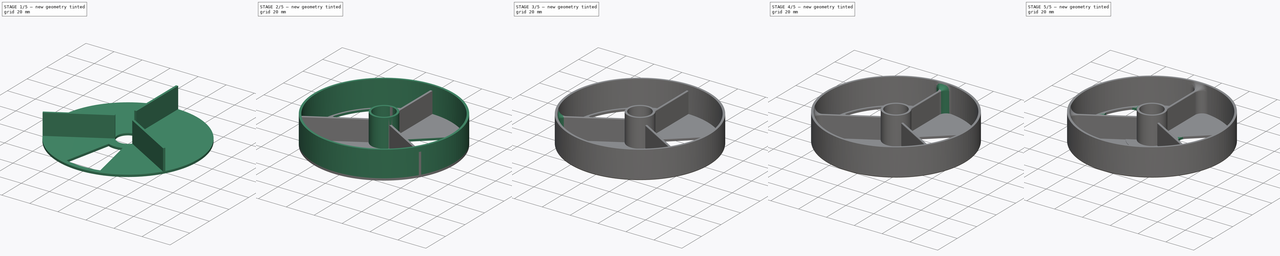
[diagram: build sequence overview — one tinted view per stage of 5, left to right]
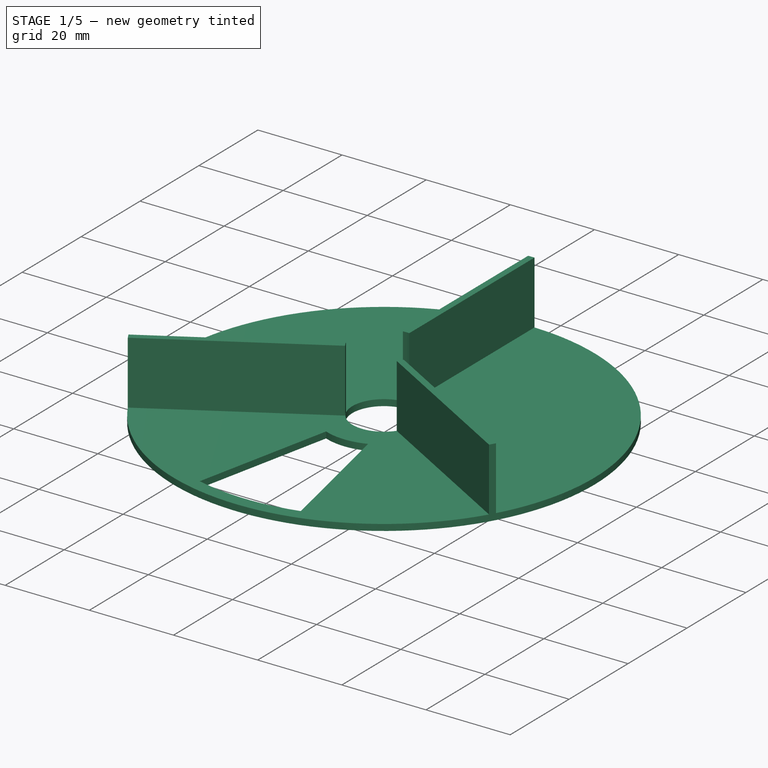
[diagram: stage 1 of 5 — iso view after this stage's code; geometry added in this stage tinted green]
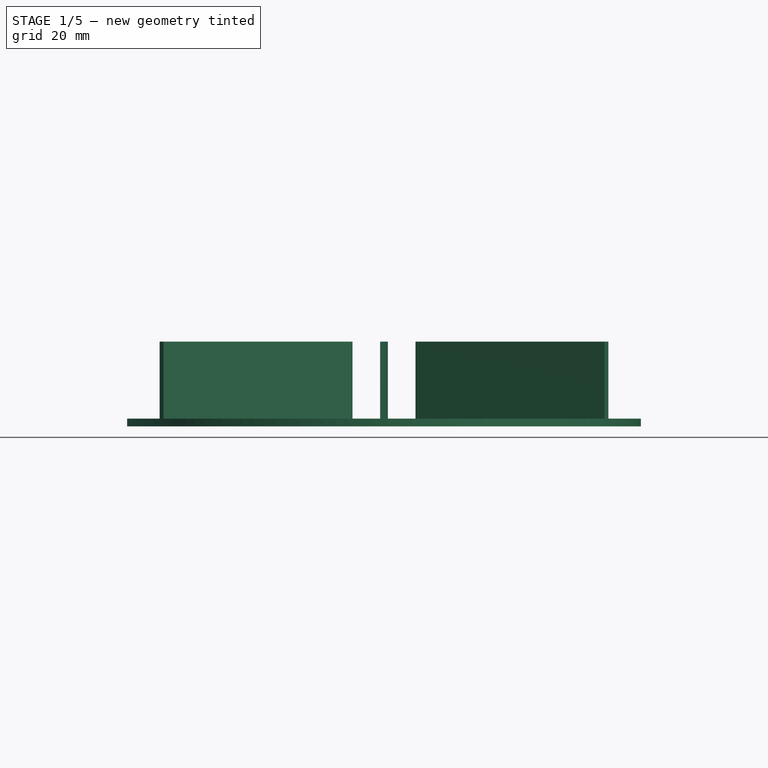
[diagram: stage 1 of 5 — front view after this stage's code; geometry added in this stage tinted green]
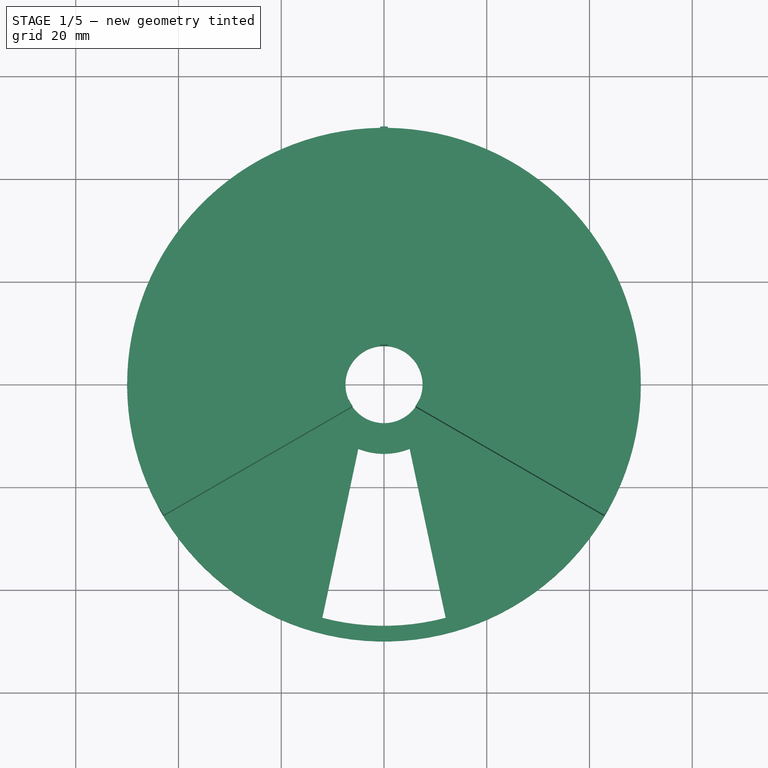
[diagram: stage 1 of 5 — top view after this stage's code; geometry added in this stage tinted green]
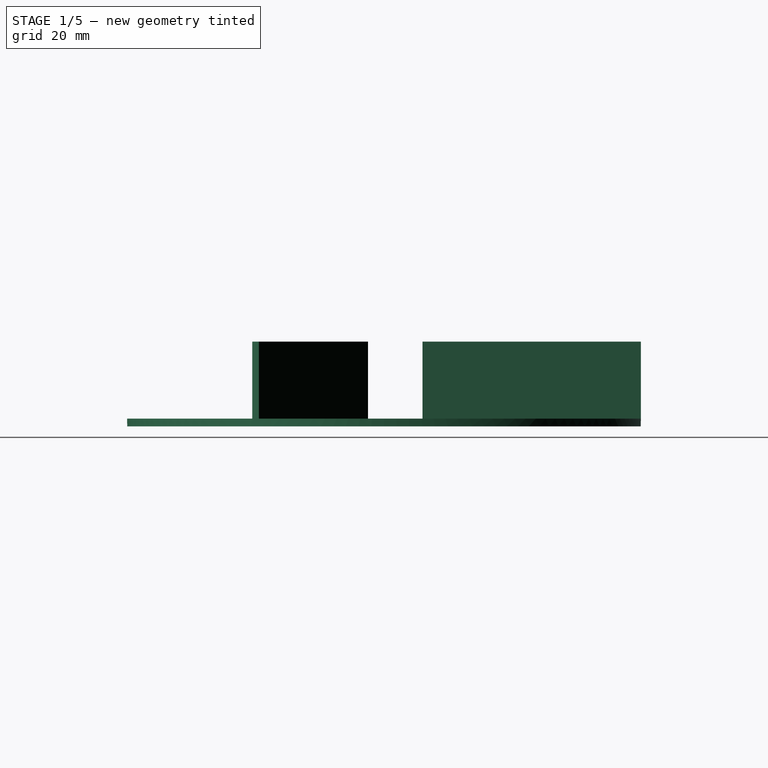
[diagram: stage 1 of 5 — right view after this stage's code; geometry added in this stage tinted green]
FCSTD DOCUMENT  (FreeCAD 0.19R24291 (Git))
Label: Ada_Tekerlek_YENI
License: All rights reserved
LicenseURL: http://en.wikipedia.org/wiki/All_rights_reserved
objects: Sketcher::SketchObject×8, PartDesign::Fillet×7, PartDesign::Pad×6, PartDesign::PolarPattern×3, PartDesign::Pocket×2, PartDesign::Chamfer×2, Spreadsheet::Sheet×1, PartDesign::Body×1, App::Part×1
note: 46 computed .brp shape members not serialized (recipe doc carries the construction recipe); baked Part::Feature solids carry a one-line shape summary decoded from their .brp

FEATURE [Sketcher::SketchObject] Sketch
  FullyConstrained = true
  MapMode = 5
  Support = -> [XY_Plane001]
  expr: Constraints[2] = <<Parametreler>>.inner_diameter
  expr: Constraints[3] = <<Parametreler>>.outer_diameter
  sketch-geometry (2):
    g0: Circle CenterX=0 CenterY=0 CenterZ=0 NormalX=0 NormalY=0 NormalZ=1 AngleXU=0 Radius=7.5
    g1: Circle CenterX=0 CenterY=0 CenterZ=0 NormalX=0 NormalY=0 NormalZ=1 AngleXU=0 Radius=50
  constraints (4):
    c: Coincident(g0,g-1)
    c: Coincident(g1,g0)
    c: Radius(g0) = 7.5
    c: Radius(g1) = 50
FEATURE [Spreadsheet::Sheet] Spreadsheet  label="Parametreler"
  cells = A2=İç Çap; B2(inner_diameter)=7.5; A3=Dış Çap; B3(outer_diameter)=50; A4=Kalınlık; B4(thikness)=1.5; A5=Yükseklik; B5(height)=20
FEATURE [PartDesign::Pad] Pad
  Direction = (1,1,1)
  Length = 1.5
  Length2 = 100
  Profile = -> Sketch
  Type = 0
  expr: Length = <<Parametreler>>.thikness
FEATURE [Sketcher::SketchObject] Sketch001
  FullyConstrained = true
  MapMode = 5
  Placement = pos=(0,0,1.5) rot=(0,0,1;0rad)
  Support = -> [Pad]
  expr: Constraints[10] = <<Parametreler>>.inner_diameter
  expr: Constraints[11] = <<Parametreler>>.outer_diameter
  sketch-geometry (4):
    g0: ArcOfCircle CenterX=0 CenterY=0 CenterZ=0 NormalX=0 NormalY=0 NormalZ=1 AngleXU=0 Radius=50.0056 StartAngle=1.5558 EndAngle=1.5858
    g1: ArcOfCircle CenterX=0 CenterY=0 CenterZ=0 NormalX=0 NormalY=0 NormalZ=1 AngleXU=0 Radius=7.53741 StartAngle=1.47113 EndAngle=1.67046
    g2: LineSegment StartX=-0.75 StartY=50 StartZ=0 EndX=-0.75 EndY=7.5 EndZ=0
    g3: LineSegment StartX=0.75 StartY=7.5 StartZ=0 EndX=0.75 EndY=50 EndZ=0
  constraints (12):
    c: Coincident(g0,g-1)
    c: Coincident(g1,g0)
    c: Coincident(g2,g0)
    c: Coincident(g2,g1)
    c: Coincident(g3,g1)
    c: Coincident(g3,g0)
    c: DistanceX(g1,g0) = 0.75
    c: DistanceX(g0,g1) = 0.75
    c: DistanceX(g0,g0) = 0.75
    c: DistanceX(g0,g0) = 0.75
    c: DistanceY(g0,g1) = 7.5
    c: DistanceY(g0,g0) = 50
FEATURE [PartDesign::Pad] Pad001
  BaseFeature = -> Pad
  Direction = (1,1,1)
  Length = 15
  Length2 = 100
  Profile = -> Sketch001
  Type = 0
  expr: Length = <<Parametreler>>.height - 5
FEATURE [PartDesign::PolarPattern] PolarPattern
  Angle = 360
  Axis = -> Sketch001 [N_Axis]
  BaseFeature = -> Pad001
  Occurrences = 3
  Originals = -> [Pad001]
FEATURE [Sketcher::SketchObject] Sketch002
  FullyConstrained = false
  MapMode = 5
  Placement = pos=(0,0,1.5) rot=(0,0,1;0rad)
  Support = -> [PolarPattern]
  expr: Constraints[3] = <<Parametreler>>.inner_diameter + 5
  sketch-geometry (4):
    g0: ArcOfCircle CenterX=0 CenterY=0 CenterZ=0 NormalX=0 NormalY=0 NormalZ=1 AngleXU=0 Radius=13.4629 StartAngle=4.33188 EndAngle=5.0929
    g1: ArcOfCircle CenterX=0 CenterY=0 CenterZ=0 NormalX=0 NormalY=0 NormalZ=1 AngleXU=0 Radius=46.9583 StartAngle=4.45398 EndAngle=4.9708
    g2: LineSegment StartX=-12 StartY=-45.3991 StartZ=0 EndX=-5 EndY=-12.5 EndZ=0
    g3: LineSegment StartX=5 StartY=-12.5 StartZ=0 EndX=12 EndY=-45.3991 EndZ=0
  constraints (11):
    c: Coincident(g0,g-1)
    c: DistanceX(g0,g0) = 5
    c: DistanceX(g0,g0) = 5
    c: DistanceY(g0,g0) = 12.5
    c: Coincident(g1,g0)
    c: DistanceX(g1,g0) = 12
    c: DistanceX(g0,g1) = 12
    c: Coincident(g2,g1)
    c: Coincident(g2,g0)
    c: Coincident(g3,g0)
    c: Coincident(g3,g1)
FEATURE [PartDesign::Pocket] Pocket
  BaseFeature = -> PolarPattern
  Length = 2
  Length2 = 100
  Profile = -> Sketch002
  Type = 0
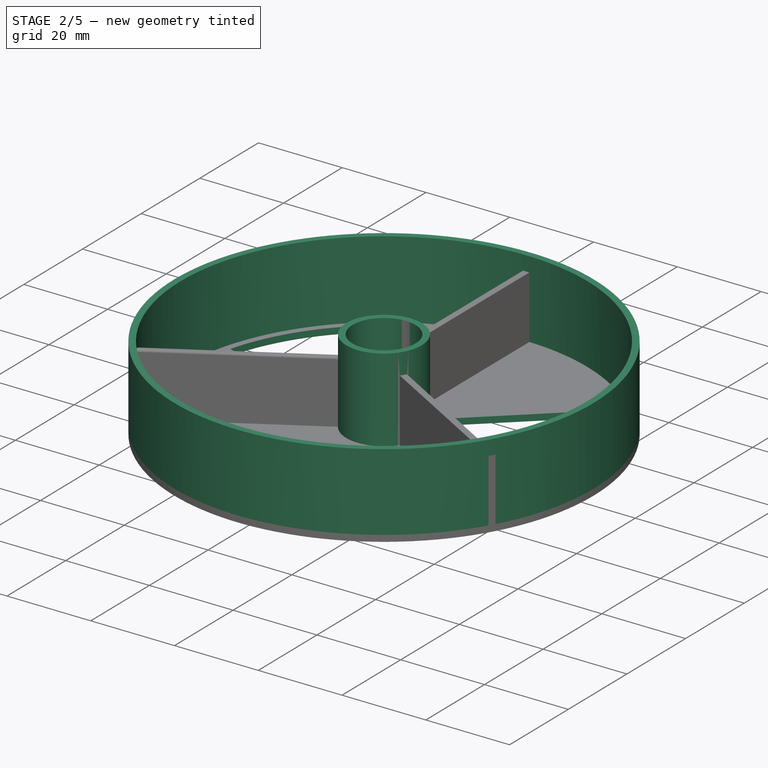
[diagram: stage 2 of 5 — iso view after this stage's code; geometry added in this stage tinted green]
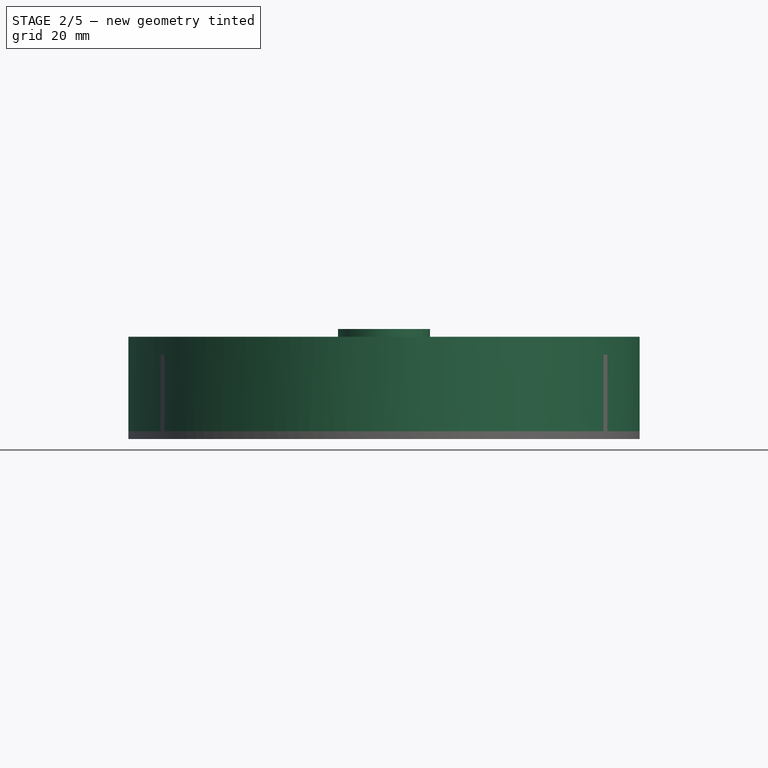
[diagram: stage 2 of 5 — front view after this stage's code; geometry added in this stage tinted green]
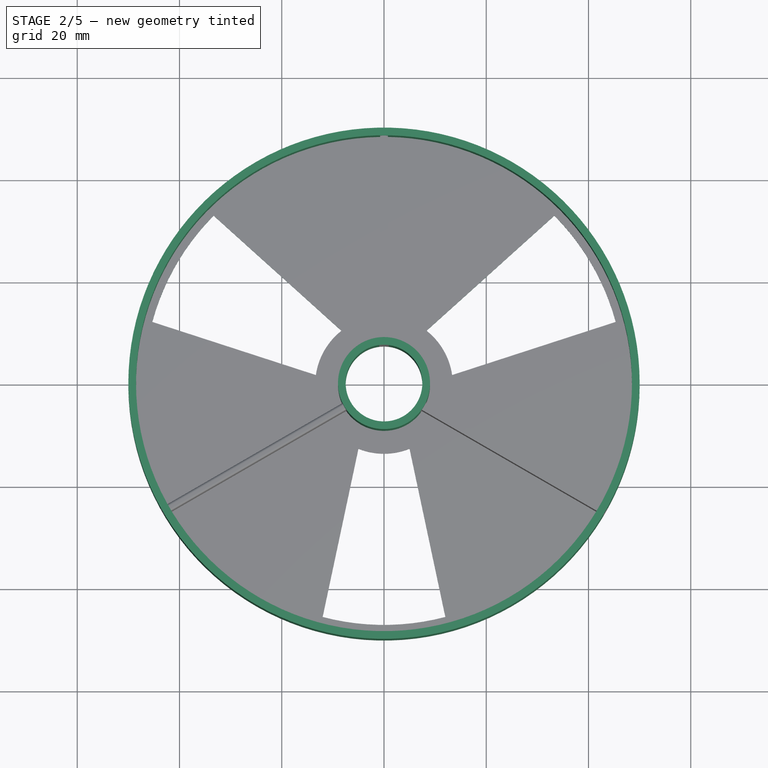
[diagram: stage 2 of 5 — top view after this stage's code; geometry added in this stage tinted green]
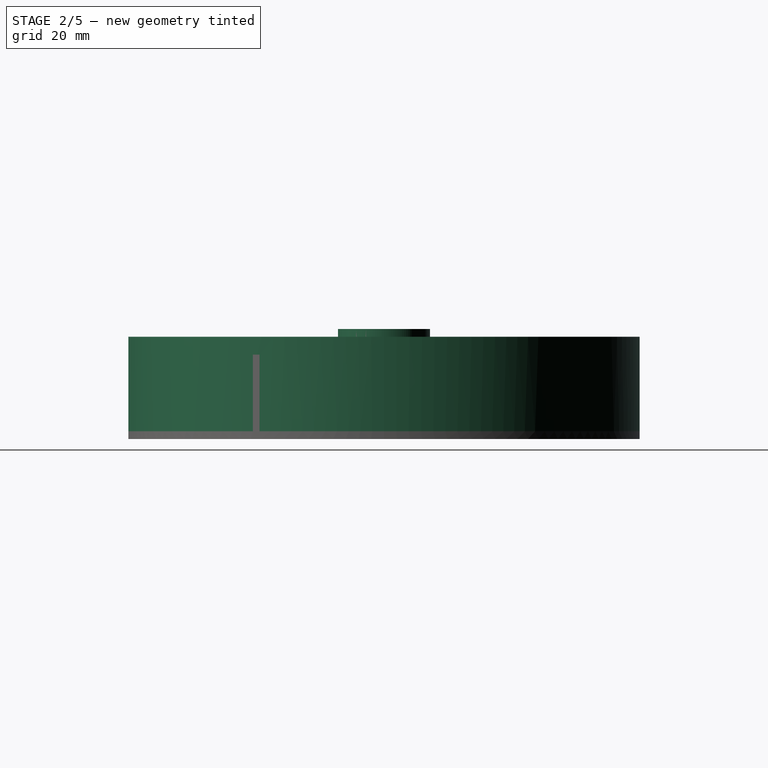
[diagram: stage 2 of 5 — right view after this stage's code; geometry added in this stage tinted green]
FEATURE [PartDesign::PolarPattern] PolarPattern001
  Angle = 360
  Axis = -> Sketch002 [N_Axis]
  BaseFeature = -> Pocket
  Occurrences = 3
  Originals = -> [Pocket]
FEATURE [Sketcher::SketchObject] Sketch003
  FullyConstrained = true
  MapMode = 5
  Placement = pos=(0,0,1.5) rot=(0,0,1;0rad)
  Support = -> [PolarPattern001]
  expr: Constraints[1] = <<Parametreler>>.inner_diameter
  expr: Constraints[3] = <<Parametreler>>.inner_diameter + <<Parametreler>>.thikness
  sketch-geometry (2):
    g0: Circle CenterX=0 CenterY=0 CenterZ=0 NormalX=0 NormalY=0 NormalZ=1 AngleXU=0 Radius=7.5
    g1: Circle CenterX=0 CenterY=0 CenterZ=0 NormalX=0 NormalY=0 NormalZ=1 AngleXU=0 Radius=9
  constraints (4):
    c: Coincident(g0,g-1)
    c: Radius(g0) = 7.5
    c: Coincident(g1,g0)
    c: Radius(g1) = 9
FEATURE [PartDesign::Pad] Pad002
  BaseFeature = -> PolarPattern001
  Direction = (1,1,1)
  Length = 20
  Length2 = 100
  Profile = -> Sketch003
  Type = 0
  expr: Length = <<Parametreler>>.height
FEATURE [Sketcher::SketchObject] Sketch004
  FullyConstrained = true
  MapMode = 5
  Support = -> [XY_Plane001]
  expr: Constraints[2] = <<Parametreler>>.outer_diameter
  expr: Constraints[3] = <<Parametreler>>.outer_diameter - <<Parametreler>>.thikness
  sketch-geometry (2):
    g0: Circle CenterX=0 CenterY=0 CenterZ=0 NormalX=0 NormalY=0 NormalZ=1 AngleXU=0 Radius=48.5
    g1: Circle CenterX=0 CenterY=0 CenterZ=0 NormalX=0 NormalY=0 NormalZ=1 AngleXU=0 Radius=50
  constraints (4):
    c: Coincident(g0,g-1)
    c: Coincident(g1,g0)
    c: Radius(g1) = 50
    c: Radius(g0) = 48.5
FEATURE [PartDesign::Pad] Pad003
  BaseFeature = -> Pad002
  Direction = (1,1,1)
  Length = 20
  Length2 = 100
  Profile = -> Sketch004
  Type = 0
  expr: Length = <<Parametreler>>.height
FEATURE [PartDesign::Fillet] Fillet
  Base = -> Pad003 [Edge114,Edge112]
  BaseFeature = -> Pad003
  Radius = 0.5
  SupportTransform = false
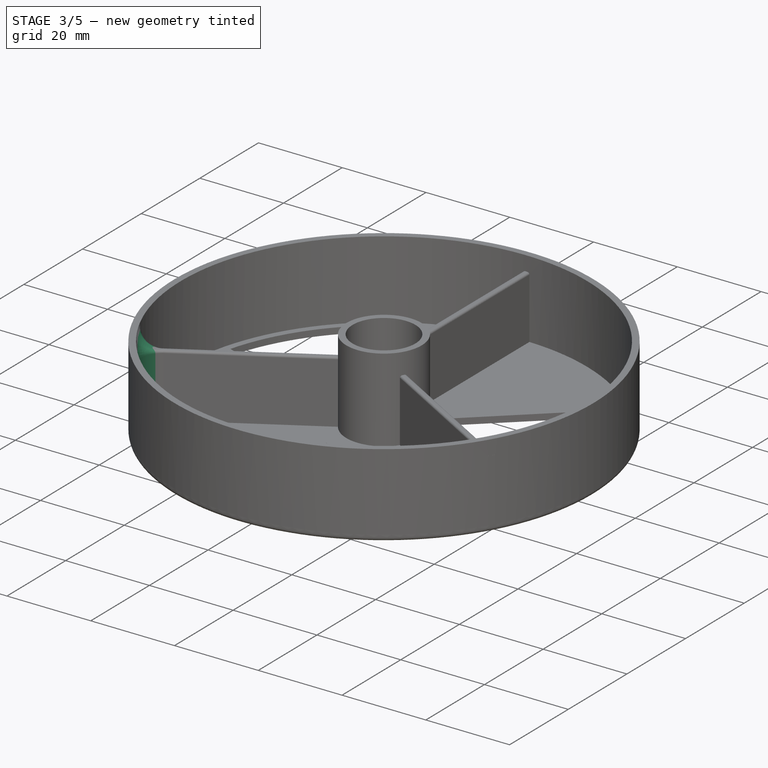
[diagram: stage 3 of 5 — iso view after this stage's code; geometry added in this stage tinted green]
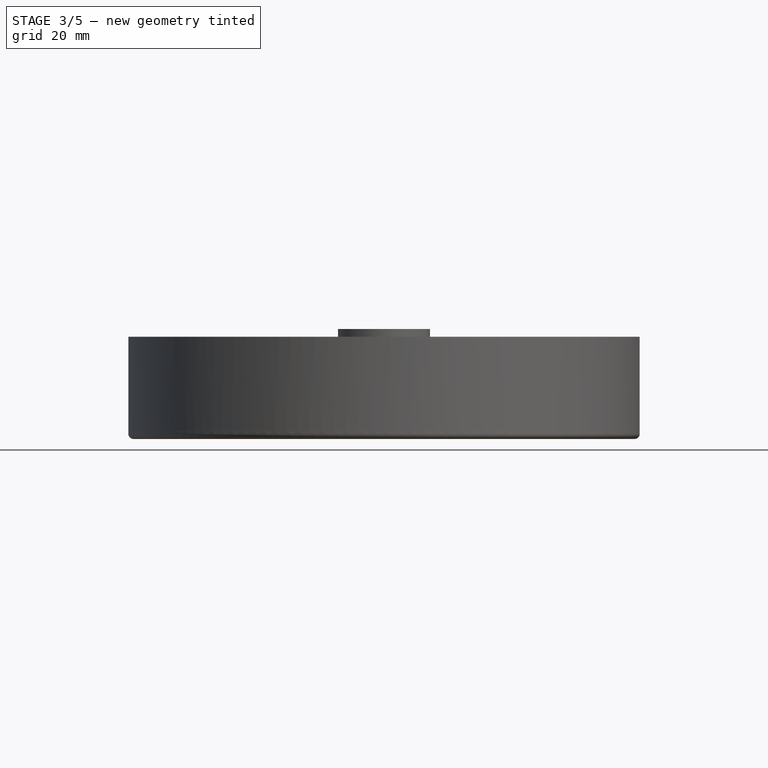
[diagram: stage 3 of 5 — front view after this stage's code; geometry added in this stage tinted green]
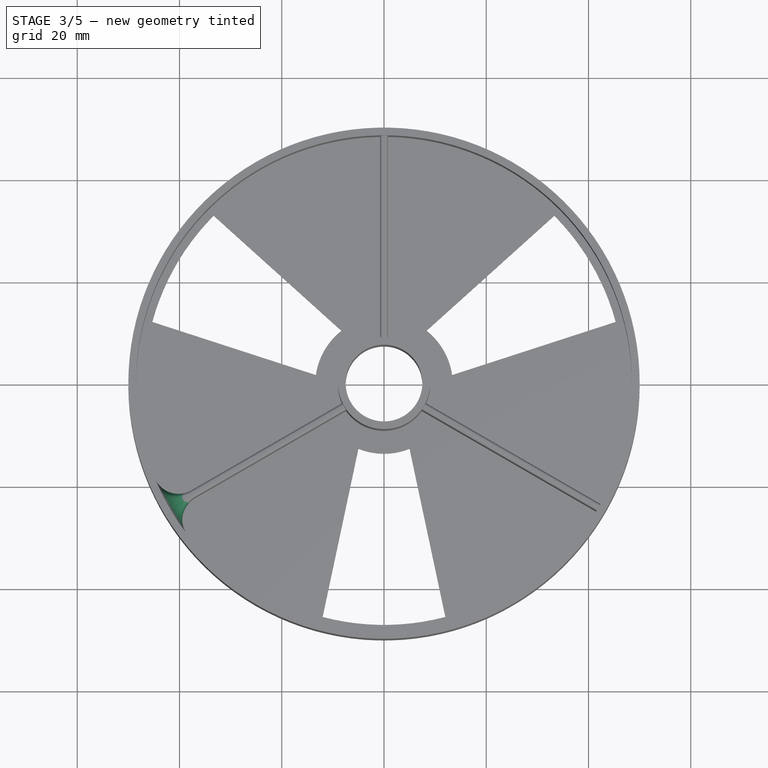
[diagram: stage 3 of 5 — top view after this stage's code; geometry added in this stage tinted green]
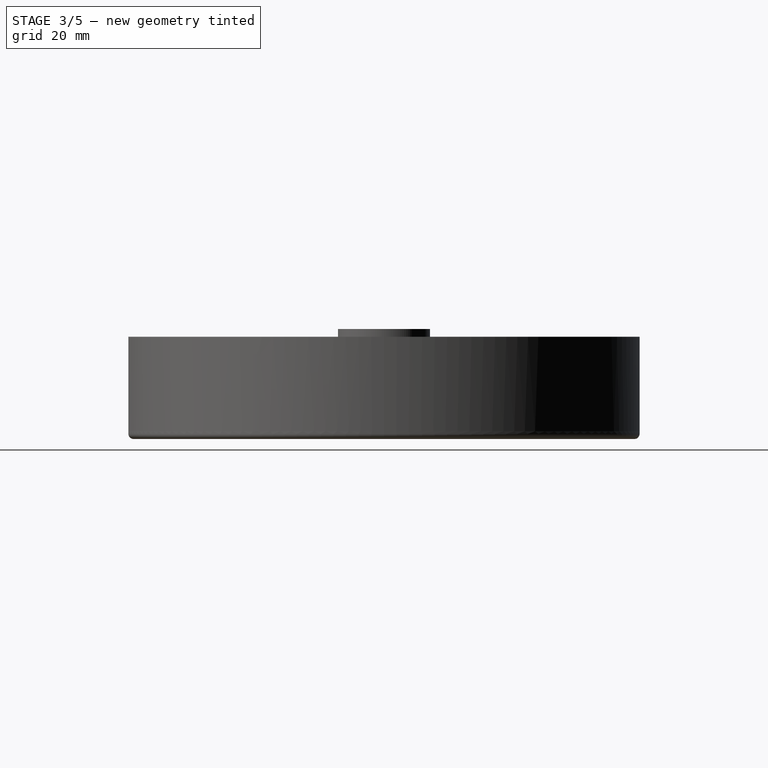
[diagram: stage 3 of 5 — right view after this stage's code; geometry added in this stage tinted green]
FEATURE [PartDesign::Fillet] Fillet001
  Base = -> Fillet [Edge54,Edge56]
  BaseFeature = -> Fillet
  Radius = 0.5
  SupportTransform = false
FEATURE [PartDesign::Fillet] Fillet002
  Base = -> Fillet001 [Edge63,Edge62]
  BaseFeature = -> Fillet001
  Radius = 0.5
  SupportTransform = false
FEATURE [PartDesign::Fillet] Fillet003
  Base = -> Fillet002 [Edge119]
  BaseFeature = -> Fillet002
  Radius = 1
  SupportTransform = false
FEATURE [PartDesign::Fillet] Fillet004
  Base = -> Fillet003 [Edge70,Edge72,Edge68]
  BaseFeature = -> Fillet003
  Radius = 5
  SupportTransform = false
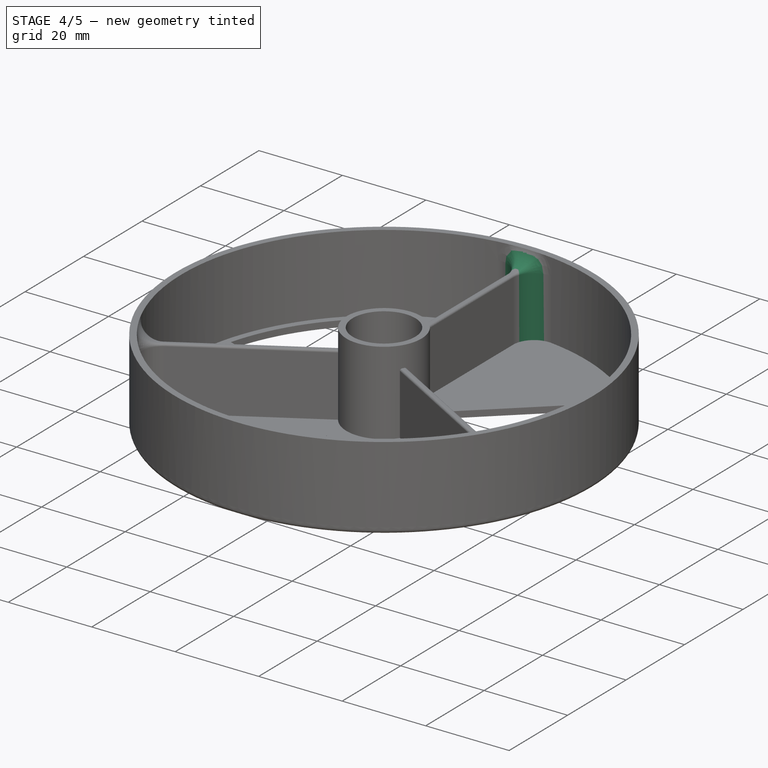
[diagram: stage 4 of 5 — iso view after this stage's code; geometry added in this stage tinted green]
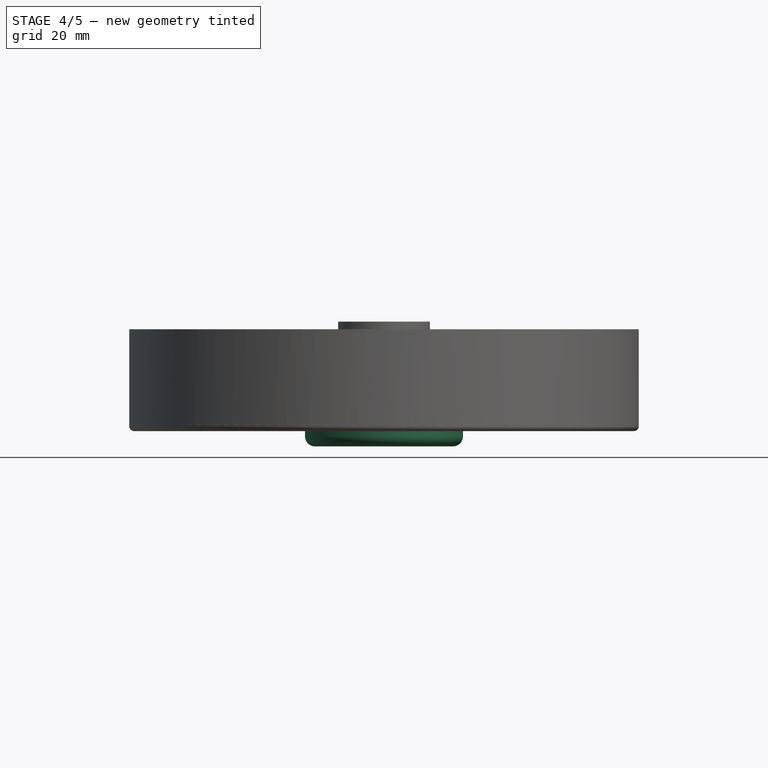
[diagram: stage 4 of 5 — front view after this stage's code; geometry added in this stage tinted green]
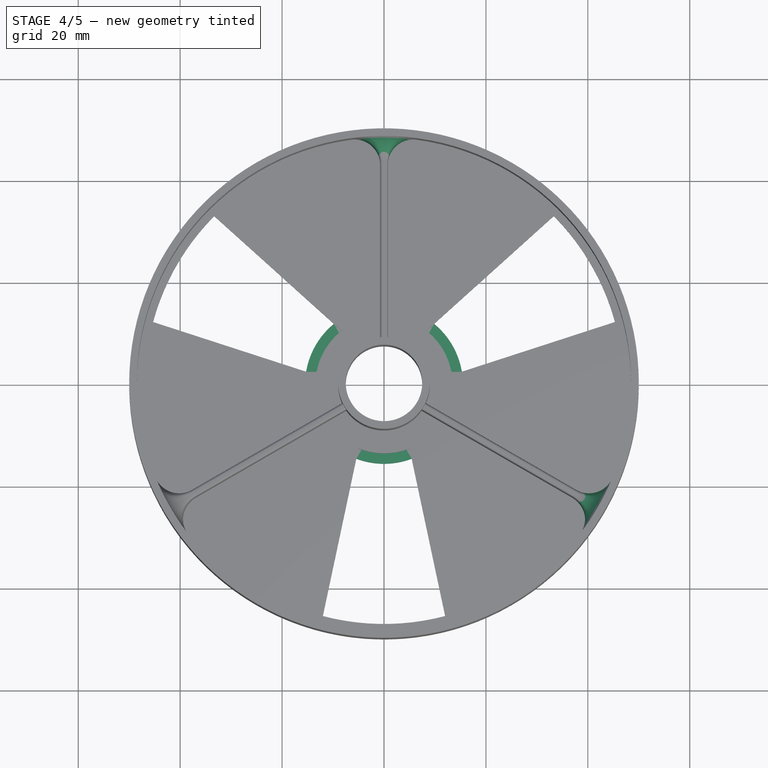
[diagram: stage 4 of 5 — top view after this stage's code; geometry added in this stage tinted green]
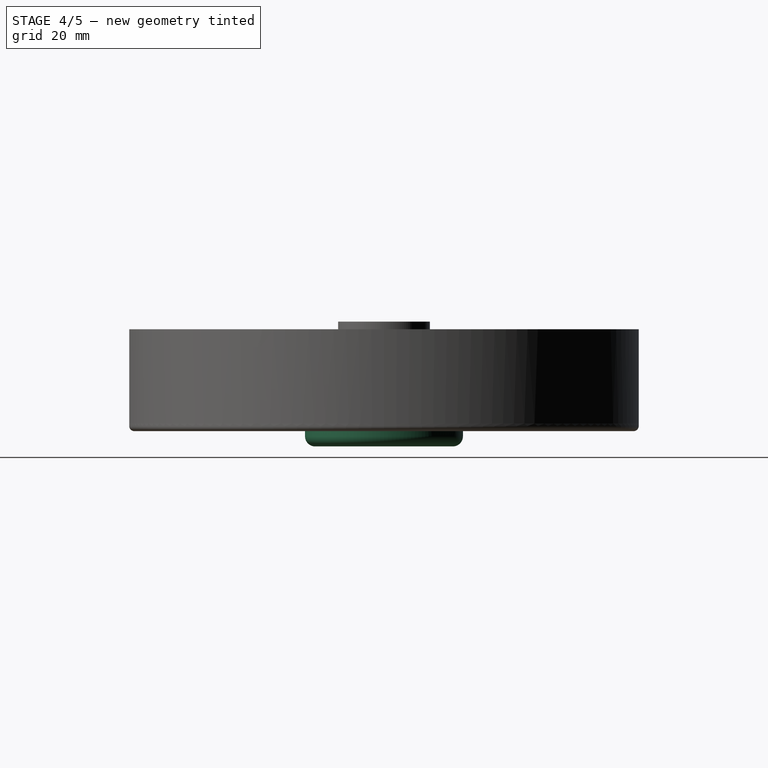
[diagram: stage 4 of 5 — right view after this stage's code; geometry added in this stage tinted green]
FEATURE [PartDesign::PolarPattern] PolarPattern002
  Angle = 360
  Axis = -> Z_Axis001
  BaseFeature = -> Fillet004
  Occurrences = 3
  Originals = -> [Fillet004]
FEATURE [Sketcher::SketchObject] Sketch005
  FullyConstrained = true
  MapMode = 5
  Placement = pos=(0,0,0) rot=(1,0,0;3.14159rad)
  Support = -> [PolarPattern002]
  expr: Constraints[3] = <<Parametreler>>.inner_diameter + 3
  expr: Constraints[2] = <<Parametreler>>.inner_diameter
  sketch-geometry (2):
    g0: Circle CenterX=0 CenterY=0 CenterZ=0 NormalX=0 NormalY=0 NormalZ=1 AngleXU=0 Radius=7.5
    g1: Circle CenterX=0 CenterY=0 CenterZ=0 NormalX=0 NormalY=0 NormalZ=1 AngleXU=0 Radius=10.5
  constraints (4):
    c: Coincident(g0,g-1)
    c: Coincident(g1,g0)
    c: Radius(g0) = 7.5
    c: Radius(g1) = 10.5
FEATURE [PartDesign::Pocket] Pocket001
  BaseFeature = -> PolarPattern002
  Length = 1
  Length2 = 100
  Profile = -> Sketch005
  Type = 0
FEATURE [Sketcher::SketchObject] Sketch006
  FullyConstrained = true
  MapMode = 5
  Placement = pos=(0,0,0) rot=(1,0,0;3.14159rad)
  Support = -> [Pocket001]
  expr: Constraints[3] = <<Parametreler>>.inner_diameter + 8
  expr: Constraints[2] = <<Parametreler>>.inner_diameter + 3
  sketch-geometry (2):
    g0: Circle CenterX=0 CenterY=0 CenterZ=0 NormalX=0 NormalY=0 NormalZ=1 AngleXU=0 Radius=15.5
    g1: Circle CenterX=0 CenterY=0 CenterZ=0 NormalX=0 NormalY=0 NormalZ=1 AngleXU=0 Radius=10.5
  constraints (4):
    c: Coincident(g0,g-1)
    c: Coincident(g1,g0)
    c: Radius(g1) = 10.5
    c: Radius(g0) = 15.5
FEATURE [PartDesign::Pad] Pad004
  BaseFeature = -> Pocket001
  Direction = (1,1,1)
  Length = 3
  Length2 = 100
  Profile = -> Sketch006
  Type = 0
FEATURE [PartDesign::Fillet] Fillet005
  Base = -> Pad004 [Edge215]
  BaseFeature = -> Pad004
  Radius = 2
  SupportTransform = false
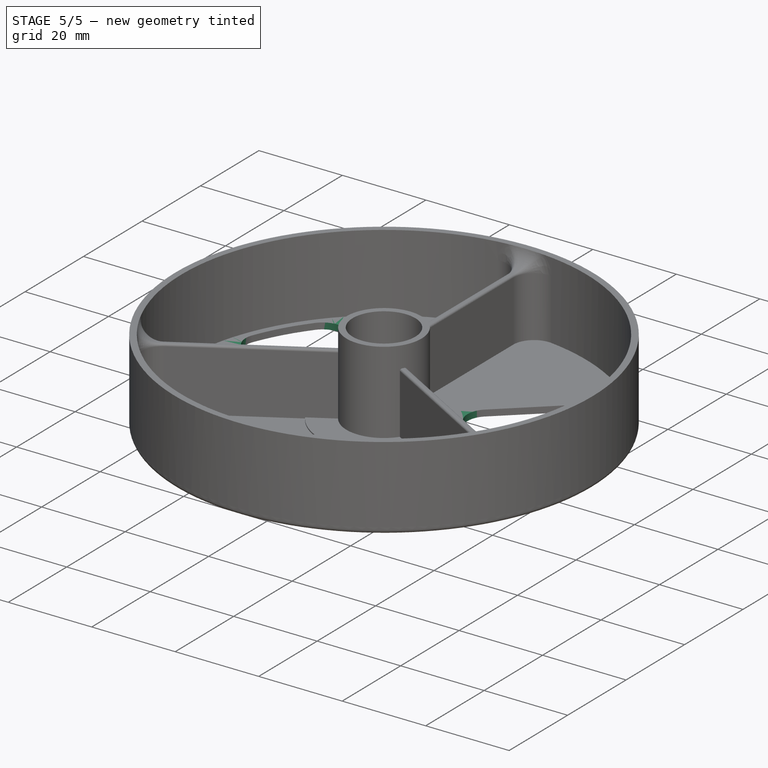
[diagram: stage 5 of 5 — iso view after this stage's code; geometry added in this stage tinted green]
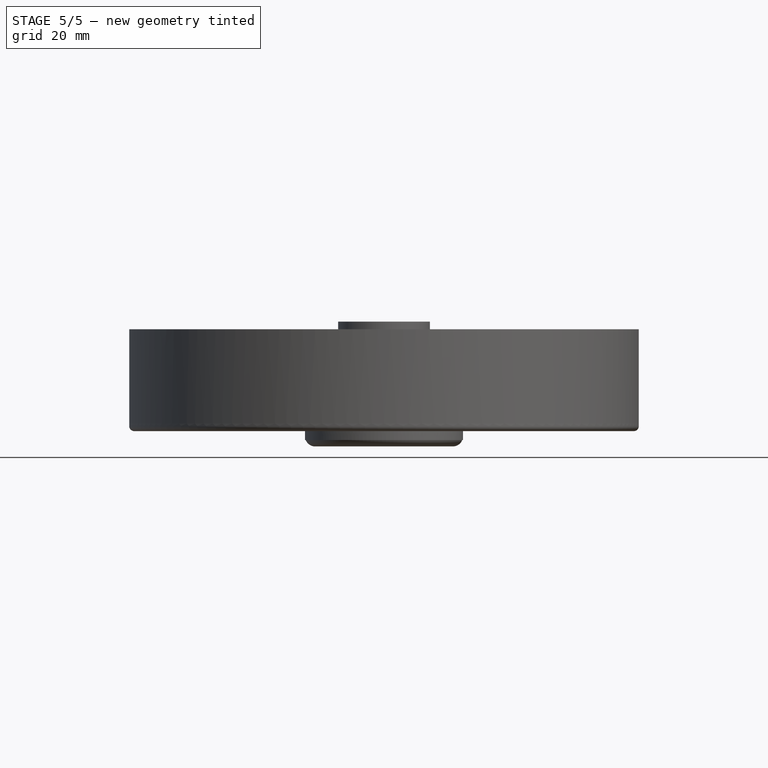
[diagram: stage 5 of 5 — front view after this stage's code; geometry added in this stage tinted green]
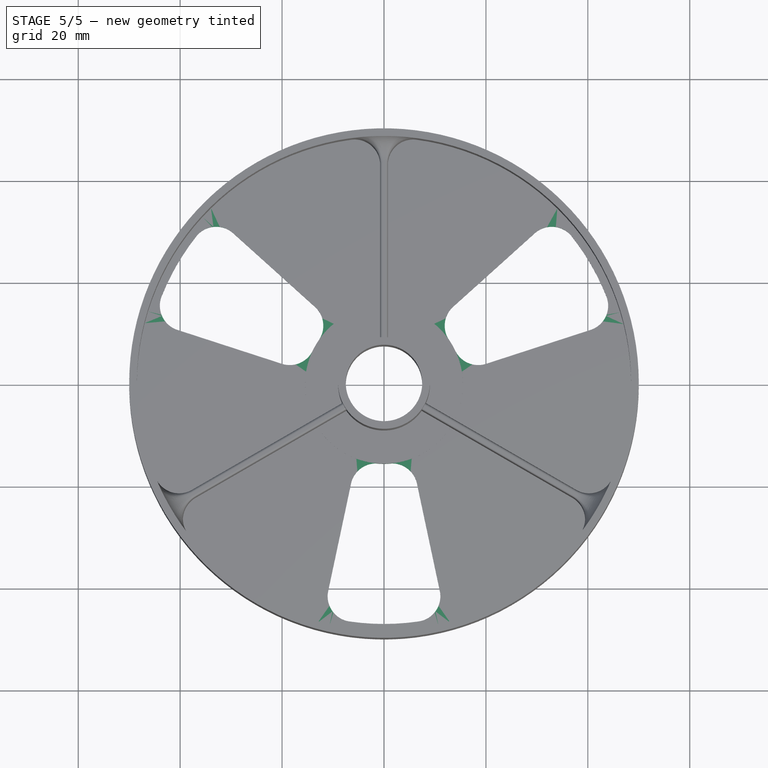
[diagram: stage 5 of 5 — top view after this stage's code; geometry added in this stage tinted green]
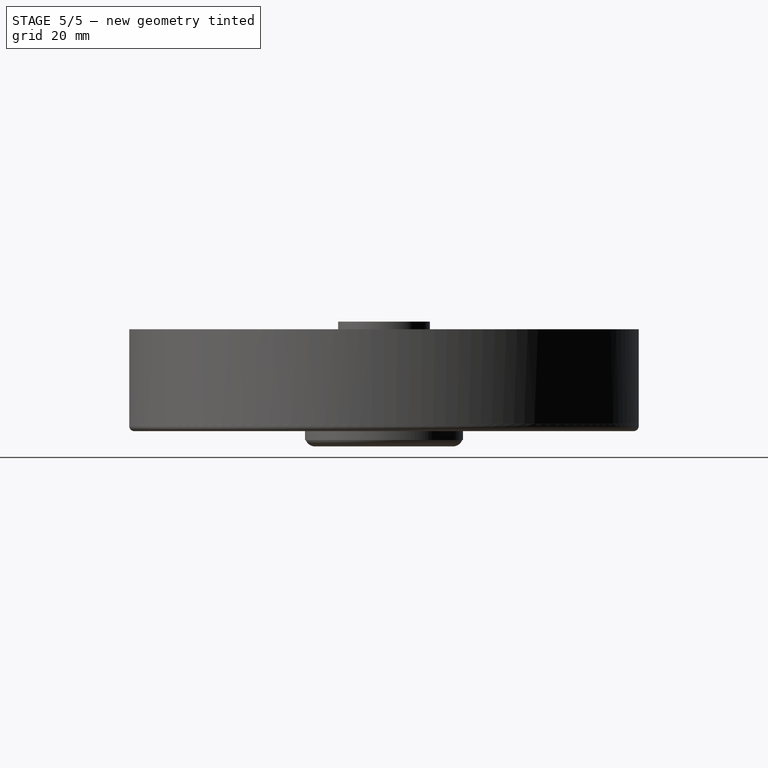
[diagram: stage 5 of 5 — right view after this stage's code; geometry added in this stage tinted green]
FEATURE [PartDesign::Chamfer] Chamfer
  Angle = 45
  Base = -> Fillet005 [Edge31]
  BaseFeature = -> Fillet005
  ChamferType = 0
  FlipDirection = false
  Size = 2
  Size2 = 1
  SupportTransform = false
FEATURE [Sketcher::SketchObject] Sketch007
  FullyConstrained = true
  MapMode = 5
  Support = -> [XY_Plane001]
  expr: Constraints[3] = <<Parametreler>>.inner_diameter + <<Parametreler>>.thikness
  expr: Constraints[1] = <<Parametreler>>.inner_diameter + 8
  sketch-geometry (2):
    g0: Circle CenterX=0 CenterY=0 CenterZ=0 NormalX=0 NormalY=0 NormalZ=1 AngleXU=0 Radius=15.5
    g1: Circle CenterX=0 CenterY=0 CenterZ=0 NormalX=0 NormalY=0 NormalZ=1 AngleXU=0 Radius=9
  constraints (4):
    c: Coincident(g0,g-1)
    c: Radius(g0) = 15.5
    c: Coincident(g1,g0)
    c: Radius(g1) = 9
FEATURE [PartDesign::Pad] Pad005
  BaseFeature = -> Chamfer
  Direction = (1,1,1)
  Length = 3.5
  Length2 = 100
  Midplane = true
  Profile = -> Sketch007
  Type = 0
FEATURE [PartDesign::Fillet] Fillet006
  Base = -> Pad005 [Edge59,Edge60,Edge41,Edge47,Edge63,Edge65,Edge36,Edge35,Edge68,Edge54,Edge70,Edge48]
  BaseFeature = -> Pad005
  Radius = 5
  SupportTransform = false
FEATURE [PartDesign::Chamfer] Chamfer001
  Angle = 45
  Base = -> Fillet006 [Edge287]
  BaseFeature = -> Fillet006
  ChamferType = 1
  FlipDirection = false
  Size = 2
  Size2 = 1
  SupportTransform = false
FEATURE [PartDesign::Body] Body
  Group = -> [Sketch,Pad,Sketch001,Pad001,PolarPattern,Sketch002,Pocket,PolarPattern001,Sketch003,Pad002,Sketch004,Pad003,Fillet,Fillet001,Fillet002,Fillet003,Fillet004,PolarPattern002,Sketch005,Pocket001,Sketch006,Pad004,Fillet005,Chamfer,Sketch007,Pad005,Fillet006,Chamfer001]
  Origin = -> Origin001
  Tip = -> Chamfer001
FEATURE [App::Part] Part
  Group = -> [Body]
  Origin = -> Origin
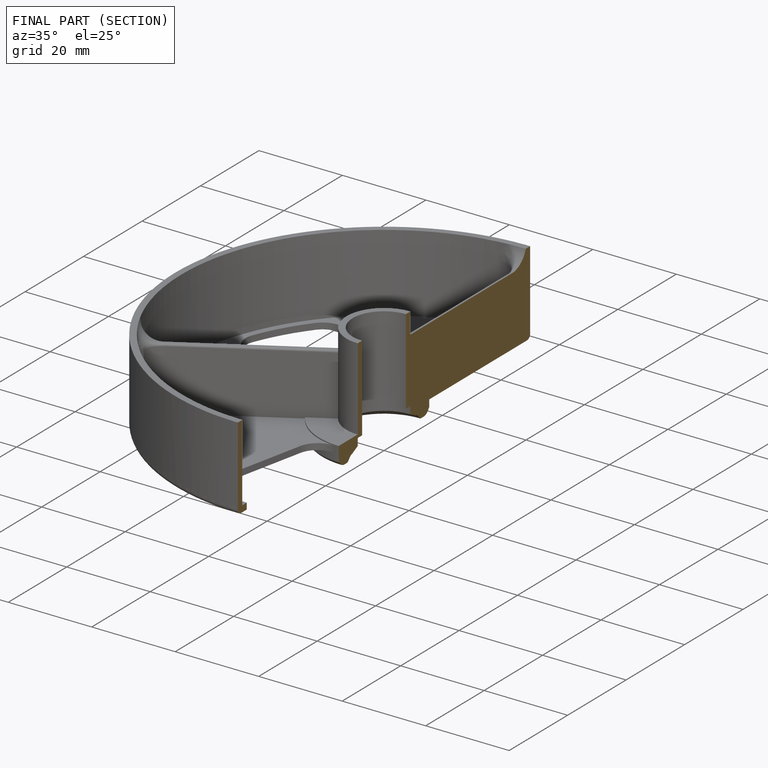
[diagram: finished part — half-section view (interior)]
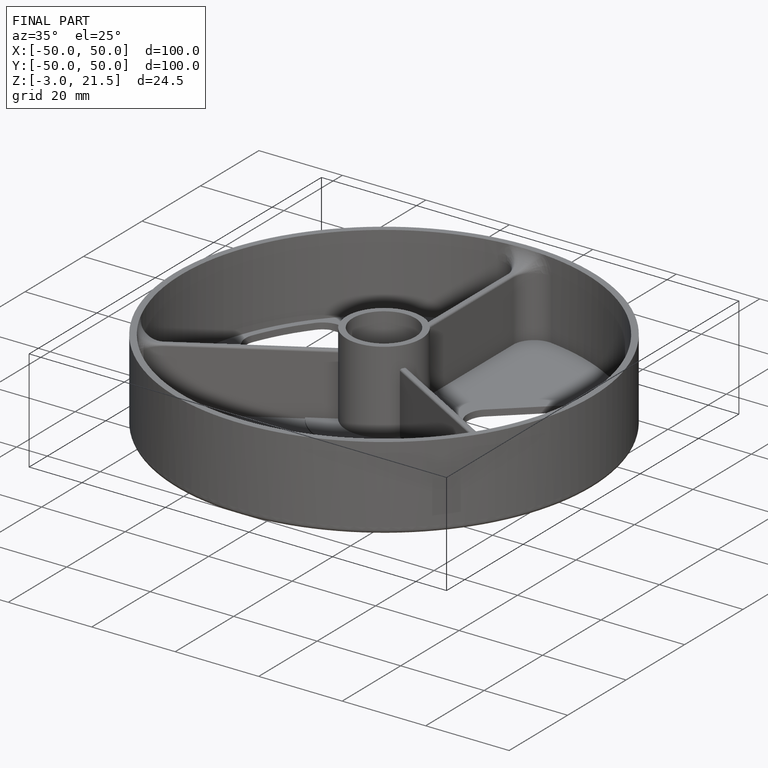
[diagram: finished part — iso view with bounding-box wireframe]
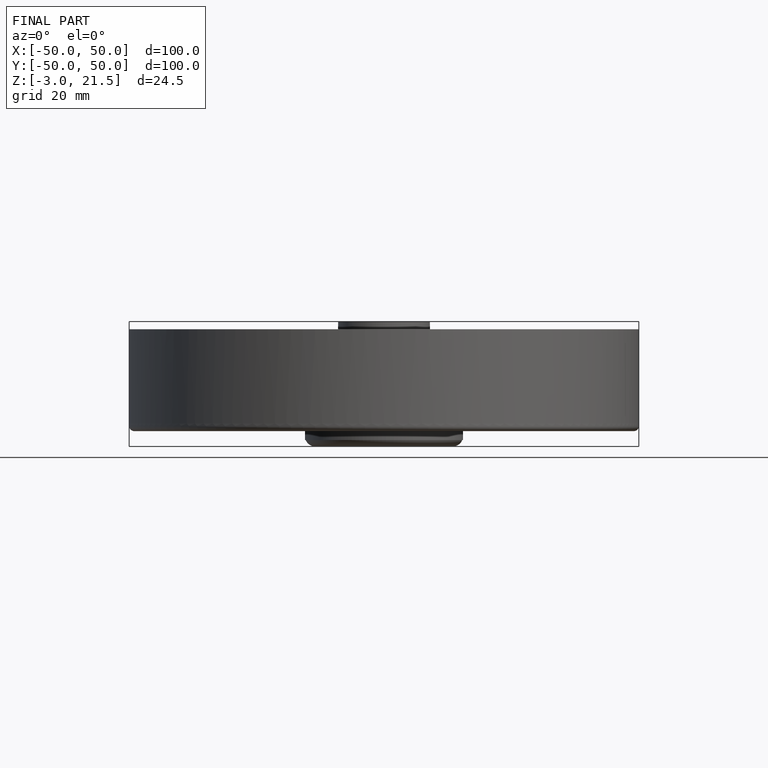
[diagram: finished part — front view with bounding-box wireframe]
